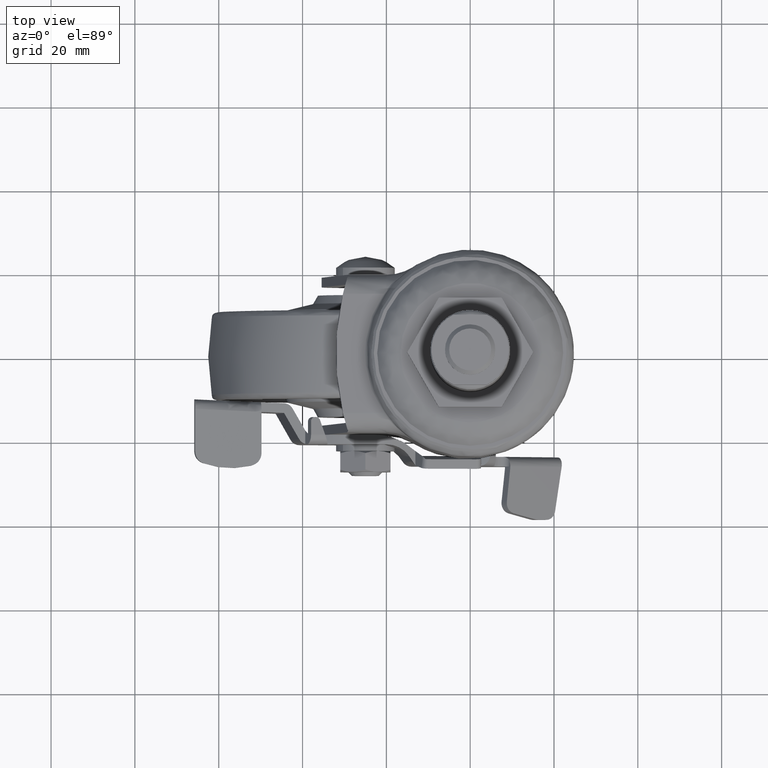
[diagram: clean part render]
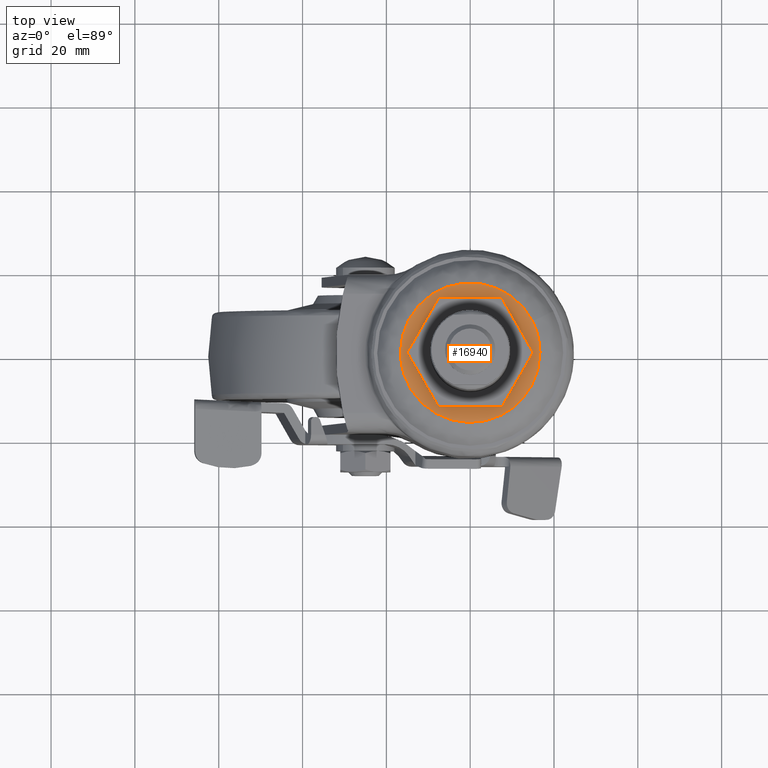
[diagram: same view with one face highlighted and labeled with its STEP entity id]
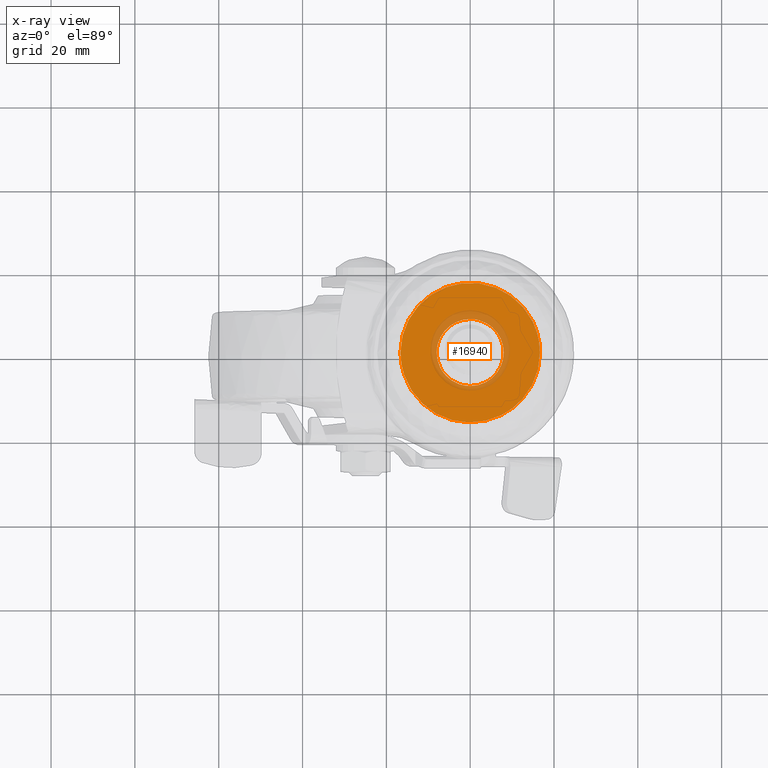
[diagram: x-ray of the same camera — body ghosted, the highlighted face saturated]
A machine part, top view. The second image highlights one B-rep face of the part: STEP entity #16940.
The next image is the same camera in x-ray: the body ghosted, the highlighted face saturated — about 13% of this face is hidden behind the body in this view.
In plain terms, the highlighted face is a freeform B-spline surface patch.
Its self-contained STEP definition (entity closure, byte-faithful):
#9517=CARTESIAN_POINT('',(5.165985191353249,-6.108502880416465,-1.999673999999893));
#9518=VERTEX_POINT('',#9517);
#9524=CARTESIAN_POINT('',(8.000075000000091,0.0,-1.999673999999895));
#9525=VERTEX_POINT('',#9524);
#9526=CARTESIAN_POINT('',(5.165985191353249,-6.108502880416465,-1.999673999999893));
#9527=CARTESIAN_POINT('',(5.663631391602292,-5.687842549023882,-1.999673999999893));
#9528=CARTESIAN_POINT('',(6.579949353681343,-4.697228398883445,-1.999673999999891));
#9529=CARTESIAN_POINT('',(7.690990269784875,-2.642172227659877,-1.999673999999906));
#9530=CARTESIAN_POINT('',(8.000900257890073,-0.977522839056362,-1.999673999999880));
#9531=CARTESIAN_POINT('',(8.000075000000091,0.0,-1.999673999999895));
#9532=B_SPLINE_CURVE_WITH_KNOTS('',3,(#9526,#9527,#9528,#9529,#9530,#9531),.UNSPECIFIED.,.F.,.U.,(4,1,1,4),(0.000000081649448,1.954840212447266,4.018250007271203,6.950531747648618),.UNSPECIFIED.);
#9533=EDGE_CURVE('',#9518,#9525,#9532,.T.);
#9535=CARTESIAN_POINT('',(-0.000002644610790,8.000074999999653,-1.999673999999895));
#9536=VERTEX_POINT('',#9535);
#9537=CARTESIAN_POINT('',(8.000075000000091,0.0,-1.999673999999895));
#9538=CARTESIAN_POINT('',(8.000122460662762,0.589028757163084,-1.999673999999895));
#9539=CARTESIAN_POINT('',(7.847833214012012,1.963567644469831,-1.999673999999894));
#9540=CARTESIAN_POINT('',(7.145484990949969,3.784541269217367,-1.999673999999889));
#9541=CARTESIAN_POINT('',(6.074948678337592,5.284377563620970,-1.999673999999897));
#9542=CARTESIAN_POINT('',(4.854030252370999,6.432657178020710,-1.999673999999893));
#9543=CARTESIAN_POINT('',(3.587053219232639,7.202699575379780,-1.999673999999896));
#9544=CARTESIAN_POINT('',(1.930579957049973,7.829956874179441,-1.999673999999894));
#9545=CARTESIAN_POINT('',(0.785458113256769,8.000437927682846,-1.999673999999896));
#9546=CARTESIAN_POINT('',(-0.000002644610790,8.000074999999653,-1.999673999999895));
#9547=B_SPLINE_CURVE_WITH_KNOTS('',3,(#9537,#9538,#9539,#9540,#9541,#9542,#9543,#9544,#9545,#9546),.UNSPECIFIED.,.F.,.U.,(4,1,1,1,1,1,1,4),(0.000000246748300,1.767135927004565,4.123429179632453,5.792421280247462,7.265041319403445,9.130392242370711,10.210355276564581,12.566568764039729),.UNSPECIFIED.);
#9548=EDGE_CURVE('',#9525,#9536,#9547,.T.);
#9550=CARTESIAN_POINT('',(-8.000075000000091,0.0,-1.999673999999895));
#9551=VERTEX_POINT('',#9550);
#9552=CARTESIAN_POINT('',(-0.000002644610790,8.000074999999653,-1.999673999999895));
#9553=CARTESIAN_POINT('',(-0.589045241979064,8.000162460591969,-1.999673999999893));
#9554=CARTESIAN_POINT('',(-1.865326771475456,7.858568624975859,-1.999673999999901));
#9555=CARTESIAN_POINT('',(-3.570355251679386,7.236785291166555,-1.999673999999888));
#9556=CARTESIAN_POINT('',(-4.975992006806711,6.322019618774807,-1.999673999999905));
#9557=CARTESIAN_POINT('',(-6.260806768567247,5.099149757020604,-1.999673999999891));
#9558=CARTESIAN_POINT('',(-7.216943093710114,3.629605235256514,-1.999673999999893));
#9559=CARTESIAN_POINT('',(-7.858641098676455,1.799788459279687,-1.999673999999918));
#9560=CARTESIAN_POINT('',(-8.000248172235624,0.654517387558873,-1.999673999999851));
#9561=CARTESIAN_POINT('',(-8.000075000000091,0.0,-1.999673999999895));
#9562=B_SPLINE_CURVE_WITH_KNOTS('',3,(#9552,#9553,#9554,#9555,#9556,#9557,#9558,#9559,#9560,#9561),.UNSPECIFIED.,.F.,.U.,(4,1,1,1,1,1,1,4),(0.000000247670128,1.767135508524769,3.828883792122332,5.399755523706041,6.774156527516593,9.130390075538925,10.603046243854781,12.566565782928301),.UNSPECIFIED.);
#9563=EDGE_CURVE('',#9536,#9551,#9562,.T.);
#9565=CARTESIAN_POINT('',(-5.803048819392153,-5.506887854435790,-1.999673999999895));
#9566=VERTEX_POINT('',#9565);
#9567=CARTESIAN_POINT('',(-8.000075000000091,0.0,-1.999673999999895));
#9568=CARTESIAN_POINT('',(-8.000889399980986,-0.949171854788891,-1.999673999999890));
#9569=CARTESIAN_POINT('',(-7.743632551520271,-2.372133296734160,-1.999673999999905));
#9570=CARTESIAN_POINT('',(-6.868748049114366,-4.206889472180330,-1.999673999999889));
#9571=CARTESIAN_POINT('',(-6.216882638019669,-5.070975180504560,-1.999673999999900));
#9572=CARTESIAN_POINT('',(-5.803048819392153,-5.506887854435790,-1.999673999999895));
#9573=B_SPLINE_CURVE_WITH_KNOTS('',3,(#9567,#9568,#9569,#9570,#9571,#9572),.UNSPECIFIED.,.F.,.U.,(4,1,1,4),(0.000000060691519,2.847127884221582,4.270661078717538,6.073838205786326),.UNSPECIFIED.);
#9574=EDGE_CURVE('',#9551,#9566,#9573,.T.);
#9674=CARTESIAN_POINT('',(0.000002644610855,-8.000074999999654,-1.999673999999895));
#9675=VERTEX_POINT('',#9674);
#9676=CARTESIAN_POINT('',(-5.803048819392153,-5.506887854435790,-1.999673999999895));
#9677=CARTESIAN_POINT('',(-5.384139744084859,-5.948515120111354,-1.999673999999890));
#9678=CARTESIAN_POINT('',(-4.575249321696672,-6.626023609156251,-1.999673999999911));
#9679=CARTESIAN_POINT('',(-3.325199488217248,-7.310341105237262,-1.999673999999878));
#9680=CARTESIAN_POINT('',(-1.859737791730675,-7.843269596159678,-1.999673999999921));
#9681=CARTESIAN_POINT('',(-0.743987356638138,-8.000333285769811,-1.999673999999879));
#9682=CARTESIAN_POINT('',(0.000002644610855,-8.000074999999654,-1.999673999999895));
#9683=B_SPLINE_CURVE_WITH_KNOTS('',3,(#9676,#9677,#9678,#9679,#9680,#9681,#9682),.UNSPECIFIED.,.F.,.U.,(4,1,1,1,4),(0.000000074930485,1.826085319555570,3.144958550499319,4.260851251552698,6.492731456491921),.UNSPECIFIED.);
#9684=EDGE_CURVE('',#9566,#9675,#9683,.T.);
#9686=CARTESIAN_POINT('',(0.000002644610855,-8.000074999999654,-1.999673999999895));
#9687=CARTESIAN_POINT('',(0.906856080504457,-8.000717123246231,-1.999673999999893));
#9688=CARTESIAN_POINT('',(2.778321305815346,-7.678101776482381,-1.999673999999909));
#9689=CARTESIAN_POINT('',(4.429440390550934,-6.732535285971427,-1.999673999999880));
#9690=CARTESIAN_POINT('',(5.165985191353249,-6.108502880416465,-1.999673999999893));
#9691=B_SPLINE_CURVE_WITH_KNOTS('',3,(#9686,#9687,#9688,#9689,#9690),.UNSPECIFIED.,.F.,.U.,(4,1,4),(0.000000046305319,2.720302296115949,5.616036060303665),.UNSPECIFIED.);
#9692=EDGE_CURVE('',#9675,#9518,#9691,.T.);
#11735=CARTESIAN_POINT('',(7.464169486745011,-14.879646794478999,-1.999674000000001));
#11736=VERTEX_POINT('',#11735);
#11748=CARTESIAN_POINT('',(-16.646853000000100,0.0,-1.999674000000000));
#11749=VERTEX_POINT('',#11748);
#11750=CARTESIAN_POINT('',(7.464169486745011,-14.879646794478999,-1.999674000000001));
#11751=CARTESIAN_POINT('',(6.438760505624122,-15.394222467355810,-1.999674000000003));
#11752=CARTESIAN_POINT('',(4.654450098546982,-16.068726837636301,-1.999674000000002));
#11753=CARTESIAN_POINT('',(1.614621670219432,-16.655351773332459,-1.999673999999996));
#11754=CARTESIAN_POINT('',(-1.713588432386900,-16.707803060169049,-1.999674000000004));
#11755=CARTESIAN_POINT('',(-5.101817367850395,-15.967931584968531,-1.999673999999976));
#11756=CARTESIAN_POINT('',(-7.691087499997558,-14.818307352905400,-1.999674000000024));
#11757=CARTESIAN_POINT('',(-9.613399789005694,-13.642514184719561,-1.999674000000006));
#11758=CARTESIAN_POINT('',(-11.690508335929030,-11.989819825914120,-1.999673999999993));
#11759=CARTESIAN_POINT('',(-13.953603349264419,-9.366218629815478,-1.999674000000007));
#11760=CARTESIAN_POINT('',(-15.635318613029090,-6.081246064800595,-1.999673999999987));
#11761=CARTESIAN_POINT('',(-16.484325682723100,-2.868160466632626,-1.999674000000018));
#11762=CARTESIAN_POINT('',(-16.646907315764210,-0.926640032725111,-1.999674000000000));
#11763=CARTESIAN_POINT('',(-16.646853000000100,0.0,-1.999674000000000));
#11764=B_SPLINE_CURVE_WITH_KNOTS('',3,(#11750,#11751,#11752,#11753,#11754,#11755,#11756,#11757,#11758,#11759,#11760,#11761,#11762,#11763),.UNSPECIFIED.,.F.,.U.,(4,1,1,1,1,1,1,1,1,1,1,4),(0.000000260221725,3.441808538106724,5.692250544322441,9.266513975590225,13.370290221553200,16.017829204432541,17.738657812320369,20.121499898454260,23.960544530600298,28.064299676331508,31.109026985144080,33.888954237702279),.UNSPECIFIED.);
#11765=EDGE_CURVE('',#11736,#11749,#11764,.T.);
#11767=CARTESIAN_POINT('',(14.879646796490981,7.464169488098742,-1.999674000000001));
#11768=VERTEX_POINT('',#11767);
#11769=CARTESIAN_POINT('',(-16.646853000000100,0.0,-1.999674000000000));
#11770=CARTESIAN_POINT('',(-16.646926513678860,1.044312654309480,-1.999674000000000));
#11771=CARTESIAN_POINT('',(-16.433353519358761,3.306997020631347,-1.999674000000000));
#11772=CARTESIAN_POINT('',(-15.371130071850301,6.766437354794102,-1.999673999999995));
#11773=CARTESIAN_POINT('',(-13.633904986944669,9.744636415249568,-1.999674000000000));
#11774=CARTESIAN_POINT('',(-11.391247526411631,12.267400472066400,-1.999674000000000));
#11775=CARTESIAN_POINT('',(-9.181189470619129,13.986730750368420,-1.999673999999994));
#11776=CARTESIAN_POINT('',(-6.819150133845970,15.242278530415129,-1.999674000000012));
#11777=CARTESIAN_POINT('',(-4.199795317563466,16.206773013132949,-1.999673999999982));
#11778=CARTESIAN_POINT('',(-0.803622512950692,16.789034828595199,-1.999674000000044));
#11779=CARTESIAN_POINT('',(2.754428756909277,16.536847769830722,-1.999673999999931));
#11780=CARTESIAN_POINT('',(6.115396755148262,15.589755706192630,-1.999674000000053));
#11781=CARTESIAN_POINT('',(9.144737468758848,14.078502308340941,-1.999673999999936));
#11782=CARTESIAN_POINT('',(11.671997352527679,12.002538021764551,-1.999674000000037));
#11783=CARTESIAN_POINT('',(13.582898627570771,9.734466078210597,-1.999673999999964));
#11784=CARTESIAN_POINT('',(14.463501111538550,8.293913174591932,-1.999673999999997));
#11785=CARTESIAN_POINT('',(14.879646796490981,7.464169488098742,-1.999674000000001));
#11786=B_SPLINE_CURVE_WITH_KNOTS('',3,(#11769,#11770,#11771,#11772,#11773,#11774,#11775,#11776,#11777,#11778,#11779,#11780,#11781,#11782,#11783,#11784,#11785),.UNSPECIFIED.,.F.,.U.,(4,1,1,1,1,1,1,1,1,1,1,1,1,1,4),(0.000000387427576,3.132961280461842,6.788093112035504,10.791337969939560,13.402157447772669,16.883302637591481,19.145963321181931,21.408652579711450,25.237790841971542,29.415051889985911,32.025907945495177,35.681044980434713,39.510258885946762,41.773024725473867,44.557784641703172),.UNSPECIFIED.);
#11787=EDGE_CURVE('',#11749,#11768,#11786,.T.);
#11867=CARTESIAN_POINT('',(16.646853000000100,0.0,-1.999674000000000));
#11868=VERTEX_POINT('',#11867);
#11869=CARTESIAN_POINT('',(14.879646796490981,7.464169488098742,-1.999674000000001));
#11870=CARTESIAN_POINT('',(15.349700931841850,6.527350978201312,-1.999673999999994));
#11871=CARTESIAN_POINT('',(16.287953057984989,4.111589317308098,-1.999674000000018));
#11872=CARTESIAN_POINT('',(16.647489776087330,1.531970552050387,-1.999673999999988));
#11873=CARTESIAN_POINT('',(16.646853000000100,0.0,-1.999674000000000));
#11874=B_SPLINE_CURVE_WITH_KNOTS('',3,(#11869,#11870,#11871,#11872,#11873),.UNSPECIFIED.,.F.,.U.,(4,1,4),(6.922286E-009,3.144422949884795,7.740117482429020),.UNSPECIFIED.);
#11875=EDGE_CURVE('',#11768,#11868,#11874,.T.);
#11877=CARTESIAN_POINT('',(16.646853000000100,0.0,-1.999674000000000));
#11878=CARTESIAN_POINT('',(16.647187211219372,-1.294408571699591,-1.999674000000000));
#11879=CARTESIAN_POINT('',(16.421955443161870,-3.211814439881282,-1.999673999999998));
#11880=CARTESIAN_POINT('',(15.572430880323580,-6.065015519052132,-1.999674000000008));
#11881=CARTESIAN_POINT('',(14.504429070628140,-8.329946004360878,-1.999673999999986));
#11882=CARTESIAN_POINT('',(12.881836980651050,-10.656000177955420,-1.999674000000007));
#11883=CARTESIAN_POINT('',(10.673628556548019,-12.938482235070770,-1.999673999999996));
#11884=CARTESIAN_POINT('',(8.707017575929303,-14.256590897295469,-1.999674000000005));
#11885=CARTESIAN_POINT('',(7.464169486745011,-14.879646794478999,-1.999674000000001));
#11886=B_SPLINE_CURVE_WITH_KNOTS('',3,(#11877,#11878,#11879,#11880,#11881,#11882,#11883,#11884,#11885),.UNSPECIFIED.,.F.,.U.,(4,1,1,1,1,1,4),(0.000000091020091,3.883110757344207,5.752770109034559,8.916809846741137,11.361689479981910,14.238078091179521,18.408823392963690),.UNSPECIFIED.);
#11887=EDGE_CURVE('',#11868,#11736,#11886,.T.);
#16921=CARTESIAN_POINT('',(-18.309873118684450,-18.308451407234749,-1.999673999999945));
#16922=CARTESIAN_POINT('',(18.309871928008739,-18.308451407234749,-1.999673999999945));
#16923=CARTESIAN_POINT('',(-18.309873118684450,18.298850880208231,-1.999673999999945));
#16924=CARTESIAN_POINT('',(18.309871928008739,18.298850880208231,-1.999673999999945));
#16925=B_SPLINE_SURFACE_WITH_KNOTS('',1,1,((#16921,#16923),(#16922,#16924)),.UNSPECIFIED.,.F.,.F.,.U.,(2,2),(2,2),(0.0,36.619745046693190),(0.0,36.607302287442977),.UNSPECIFIED.);
#16926=ORIENTED_EDGE('',*,*,#11765,.F.);
#16927=ORIENTED_EDGE('',*,*,#11887,.F.);
#16928=ORIENTED_EDGE('',*,*,#11875,.F.);
#16929=ORIENTED_EDGE('',*,*,#11787,.F.);
#16930=EDGE_LOOP('',(#16926,#16927,#16928,#16929));
#16931=FACE_OUTER_BOUND('',#16930,.T.);
#16932=ORIENTED_EDGE('',*,*,#9548,.F.);
#16933=ORIENTED_EDGE('',*,*,#9533,.F.);
#16934=ORIENTED_EDGE('',*,*,#9692,.F.);
#16935=ORIENTED_EDGE('',*,*,#9684,.F.);
#16936=ORIENTED_EDGE('',*,*,#9574,.F.);
#16937=ORIENTED_EDGE('',*,*,#9563,.F.);
#16938=EDGE_LOOP('',(#16932,#16933,#16934,#16935,#16936,#16937));
#16939=FACE_BOUND('',#16938,.T.);
#16940=ADVANCED_FACE('',(#16931,#16939),#16925,.T.);